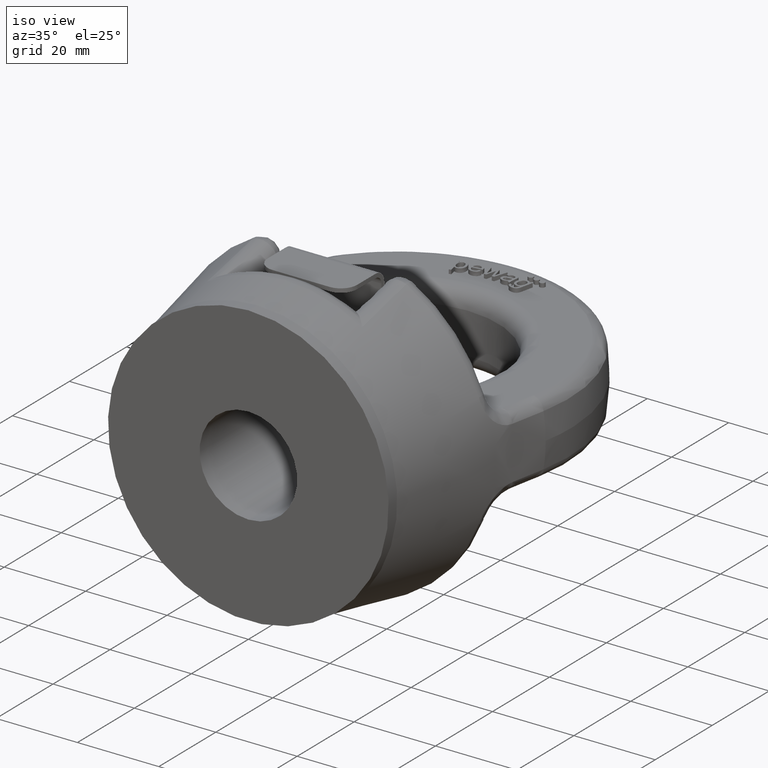
[diagram: clean part render]
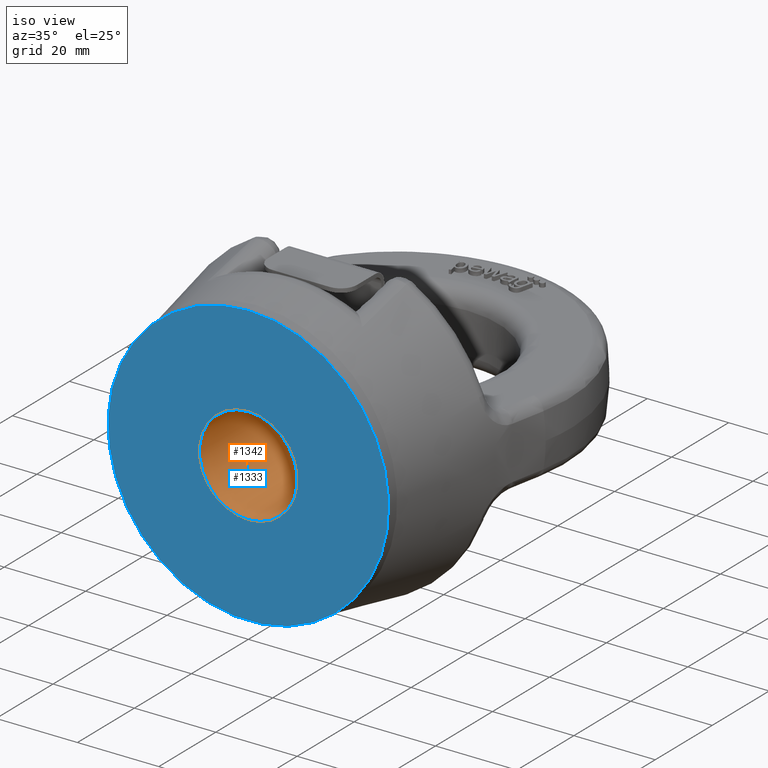
[diagram: same view with the hole feature highlighted: cylindrical wall and planar end face, labeled with their STEP entity ids]
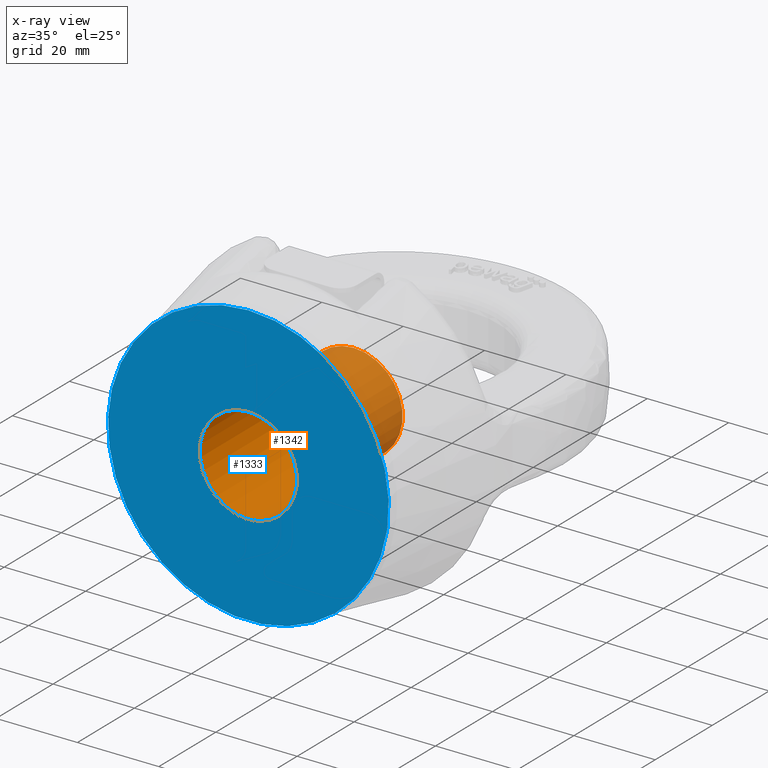
[diagram: x-ray of the same camera — body ghosted, the hole faces saturated]
A machine part, iso view. The highlighted faces form one hole feature of diameter 24 mm: the cylindrical wall (entity #1342, orange) and its adjacent planar end face (entity #1333, blue) — they share a circular edge in the B-rep.
The next image is the same camera in x-ray (body ghosted, the hole faces saturated) — the bore reads through the body.
Wall:
#1070=CYLINDRICAL_SURFACE('',#5152,12.);
#1342=ADVANCED_FACE('',(#1789,#1790),#1070,.F.);
#1699=CIRCLE('',#5138,12.);
#1701=CIRCLE('',#5146,12.);
#1789=FACE_BOUND('',#1860,.T.);
#1790=FACE_BOUND('',#1861,.T.);
#1860=EDGE_LOOP('',(#2874));
#1861=EDGE_LOOP('',(#2875));
#2874=ORIENTED_EDGE('',*,*,#4398,.F.);
#2875=ORIENTED_EDGE('',*,*,#4387,.F.);
#3997=VERTEX_POINT('',#6854);
#4004=VERTEX_POINT('',#6878);
#4387=EDGE_CURVE('',#3997,#3997,#1699,.T.);
#4398=EDGE_CURVE('',#4004,#4004,#1701,.T.);
#5138=AXIS2_PLACEMENT_3D('',#6853,#5514,#5515);
#5146=AXIS2_PLACEMENT_3D('',#6877,#5539,#5540);
#5152=AXIS2_PLACEMENT_3D('',#6888,#5554,#5555);
#5514=DIRECTION('',(0.,1.,0.));
#5515=DIRECTION('',(0.,0.,1.));
#5539=DIRECTION('',(0.,-1.,0.));
#5540=DIRECTION('',(0.,0.,-1.));
#5554=DIRECTION('',(0.,-1.,0.));
#5555=DIRECTION('',(0.,0.,-1.));
#6853=CARTESIAN_POINT('',(0.,0.,0.));
#6854=CARTESIAN_POINT('',(0.,0.,12.));
#6877=CARTESIAN_POINT('',(0.,37.,0.));
#6878=CARTESIAN_POINT('',(0.,37.,-12.));
#6888=CARTESIAN_POINT('',(0.,37.,0.));
End face:
#1333=ADVANCED_FACE('',(#1783,#1784),#1570,.F.);
#1570=PLANE('',#5140);
#1699=CIRCLE('',#5138,12.);
#1700=CIRCLE('',#5139,34.5000000000001);
#1783=FACE_BOUND('',#1848,.T.);
#1784=FACE_BOUND('',#1849,.T.);
#1848=EDGE_LOOP('',(#2837));
#1849=EDGE_LOOP('',(#2838));
#2837=ORIENTED_EDGE('',*,*,#4387,.T.);
#2838=ORIENTED_EDGE('',*,*,#4388,.F.);
#3997=VERTEX_POINT('',#6854);
#3998=VERTEX_POINT('',#6856);
#4387=EDGE_CURVE('',#3997,#3997,#1699,.T.);
#4388=EDGE_CURVE('',#3998,#3998,#1700,.T.);
#5138=AXIS2_PLACEMENT_3D('',#6853,#5514,#5515);
#5139=AXIS2_PLACEMENT_3D('',#6855,#5516,#5517);
#5140=AXIS2_PLACEMENT_3D('',#6857,#5518,#5519);
#5514=DIRECTION('',(0.,1.,0.));
#5515=DIRECTION('',(0.,0.,1.));
#5516=DIRECTION('',(0.,1.,0.));
#5517=DIRECTION('',(0.,0.,1.));
#5518=DIRECTION('',(0.,1.,0.));
#5519=DIRECTION('',(0.,0.,1.));
#6853=CARTESIAN_POINT('',(0.,0.,0.));
#6854=CARTESIAN_POINT('',(0.,0.,12.));
#6855=CARTESIAN_POINT('',(-1.27403500852703E-13,0.,1.27681389727595E-14));
#6856=CARTESIAN_POINT('',(-1.27403500852703E-13,0.,34.5000000000001));
#6857=CARTESIAN_POINT('',(0.,0.,0.));